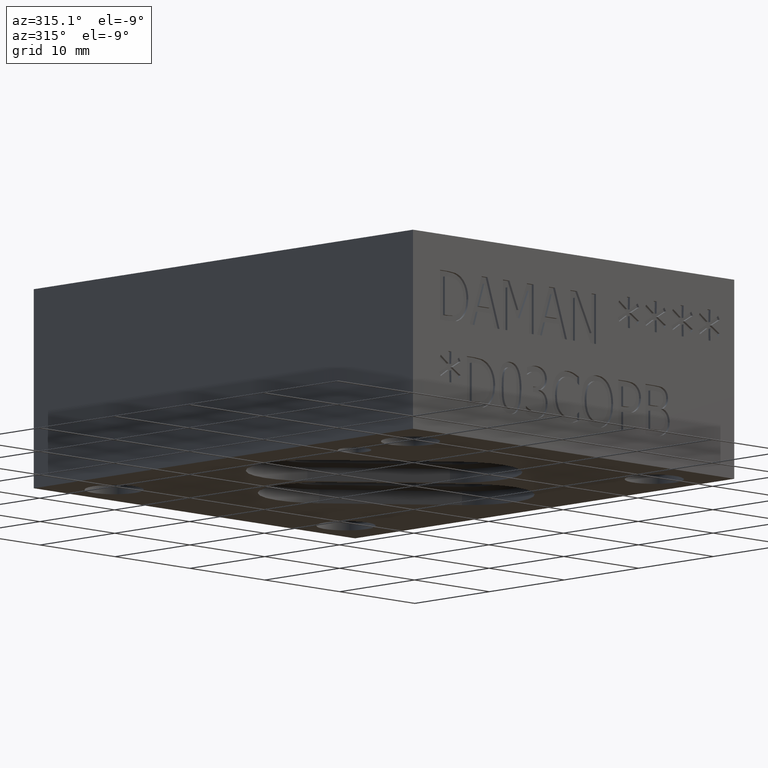
[diagram: clean part render]
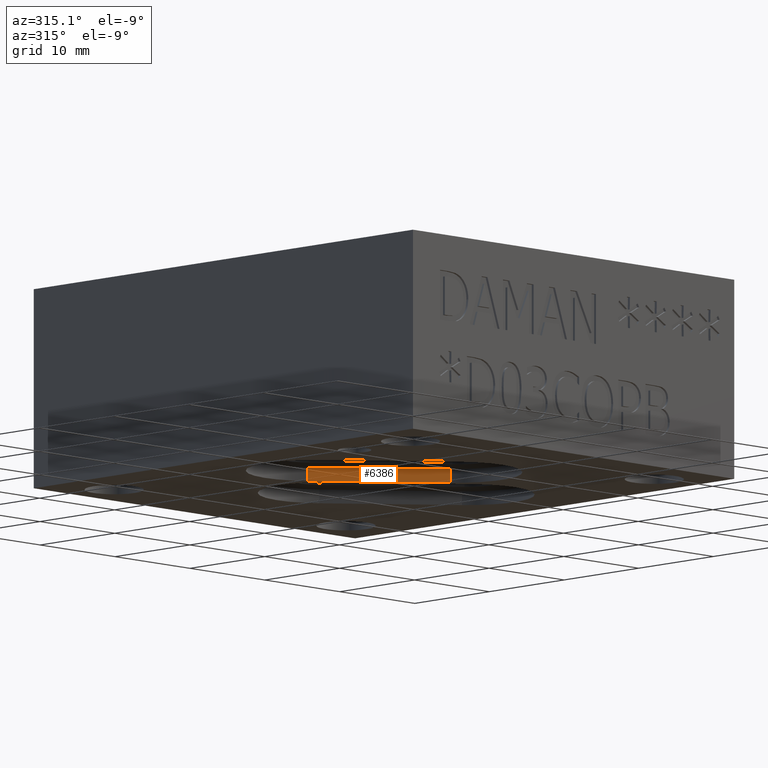
[diagram: same view with one face highlighted and labeled with its STEP entity id]
A machine part, auxiliary view. The second image highlights one B-rep face of the part: STEP entity #6386.
In plain terms, the highlighted planar face has unit normal (0.6464, 0.763, 0).
Its self-contained STEP definition (entity closure, byte-faithful):
#515=FACE_OUTER_BOUND('',#879,.T.);
#879=EDGE_LOOP('',(#5706,#5707,#5708,#5709));
#1574=LINE('',#11289,#2258);
#1575=LINE('',#11291,#2259);
#1576=LINE('',#11293,#2260);
#1577=LINE('',#11294,#2261);
#2258=VECTOR('',#7805,0.532139079564732);
#2259=VECTOR('',#7806,0.052);
#2260=VECTOR('',#7807,0.532139079564732);
#2261=VECTOR('',#7808,0.052);
#3062=VERTEX_POINT('',#11287);
#3063=VERTEX_POINT('',#11288);
#3064=VERTEX_POINT('',#11290);
#3065=VERTEX_POINT('',#11292);
#3959=EDGE_CURVE('',#3062,#3063,#1574,.T.);
#3960=EDGE_CURVE('',#3064,#3062,#1575,.T.);
#3961=EDGE_CURVE('',#3065,#3064,#1576,.T.);
#3962=EDGE_CURVE('',#3065,#3063,#1577,.T.);
#5706=ORIENTED_EDGE('',*,*,#3959,.F.);
#5707=ORIENTED_EDGE('',*,*,#3960,.F.);
#5708=ORIENTED_EDGE('',*,*,#3961,.F.);
#5709=ORIENTED_EDGE('',*,*,#3962,.T.);
#6060=PLANE('',#6653);
#6386=ADVANCED_FACE('',(#515),#6060,.F.);
#6653=AXIS2_PLACEMENT_3D('',#11286,#7803,#7804);
#7803=DIRECTION('center_axis',(0.646447542024874,0.762958436227032,0.));
#7804=DIRECTION('ref_axis',(0.,0.,-1.));
#7805=DIRECTION('',(0.762958436227032,-0.646447542024874,0.));
#7806=DIRECTION('',(0.,0.,1.));
#7807=DIRECTION('',(-0.762958436227032,0.646447542024874,0.));
#7808=DIRECTION('',(0.,0.,1.));
#11286=CARTESIAN_POINT('Origin',(0.599611885506218,1.15873960905676,0.));
#11287=CARTESIAN_POINT('',(0.599611885506218,1.15873960905676,0.052));
#11288=CARTESIAN_POINT('',(1.00561188550622,0.814739609056758,0.052));
#11289=CARTESIAN_POINT('',(0.599611885506218,1.15873960905676,0.052));
#11290=CARTESIAN_POINT('',(0.599611885506218,1.15873960905676,0.));
#11291=CARTESIAN_POINT('',(0.599611885506218,1.15873960905676,0.));
#11292=CARTESIAN_POINT('',(1.00561188550622,0.814739609056758,0.));
#11293=CARTESIAN_POINT('',(1.00561188550622,0.814739609056758,0.));
#11294=CARTESIAN_POINT('',(1.00561188550622,0.814739609056758,0.));